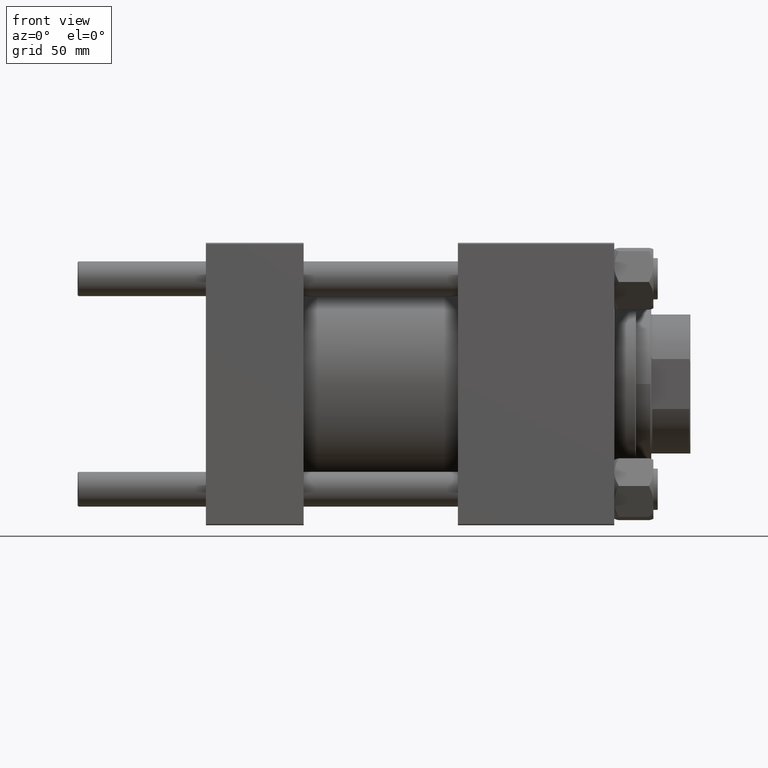
[diagram: clean part render]
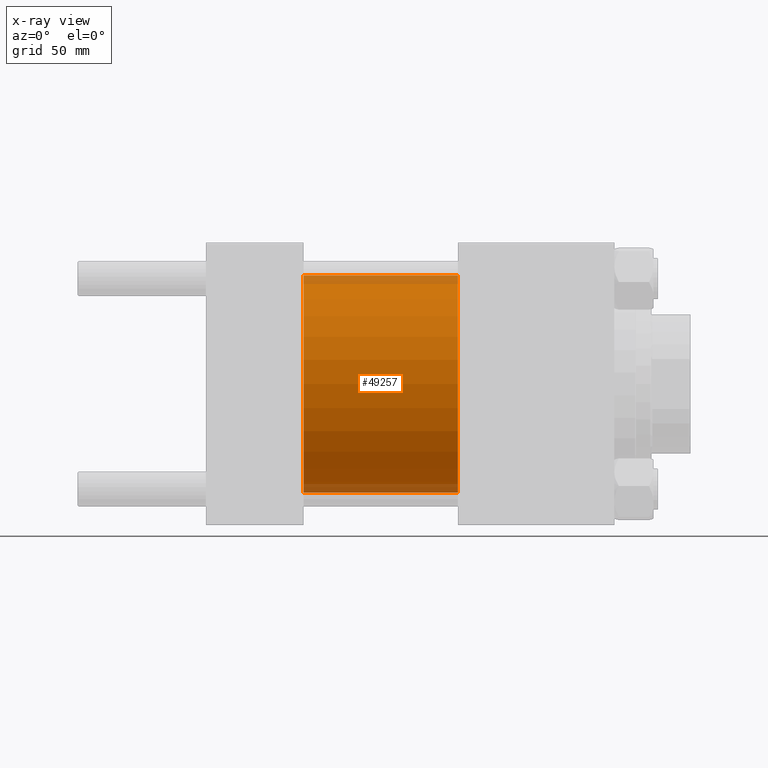
[diagram: x-ray — body ghosted, one internal face saturated and labeled with its STEP entity id]
A machine part, front view, then the same camera in x-ray: the body is ghosted and one INTERNAL B-rep face — a face not visible from any outside direction — is saturated and labeled: STEP entity #49257.
In plain terms, the highlighted cylindrical surface (partial cylindrical patch) has radius 50 mm, axis along (-1, -0, -0).
Its self-contained STEP definition (entity closure, byte-faithful):
#752 = ORIENTED_EDGE ( 'NONE', *, *, #42595, .T. ) ;
#817 = AXIS2_PLACEMENT_3D ( 'NONE', #24074, #12574, #23827 ) ;
#2895 = DIRECTION ( 'NONE',  ( 0.000000000000000000, 0.000000000000000000, -1.000000000000000000 ) ) ;
#5299 = ORIENTED_EDGE ( 'NONE', *, *, #22288, .T. ) ;
#7909 = EDGE_CURVE ( 'NONE', #24106, #17275, #13282, .T. ) ;
#9228 = DIRECTION ( 'NONE',  ( -1.000000000000000000, -0.000000000000000000, -0.000000000000000000 ) ) ;
#9753 = ORIENTED_EDGE ( 'NONE', *, *, #7909, .F. ) ;
#10189 = DIRECTION ( 'NONE',  ( 0.000000000000000000, 0.000000000000000000, 1.000000000000000000 ) ) ;
#12574 = DIRECTION ( 'NONE',  ( 1.000000000000000000, 0.000000000000000000, 0.000000000000000000 ) ) ;
#13282 = LINE ( 'NONE', #37021, #45515 ) ;
#13538 = DIRECTION ( 'NONE',  ( -1.000000000000000000, -0.000000000000000000, -0.000000000000000000 ) ) ;
#14942 = EDGE_CURVE ( 'NONE', #17275, #18814, #29344, .T. ) ;
#17275 = VERTEX_POINT ( 'NONE', #41350 ) ;
#18368 = DIRECTION ( 'NONE',  ( -1.000000000000000000, -0.000000000000000000, -0.000000000000000000 ) ) ;
#18622 = CYLINDRICAL_SURFACE ( 'NONE', #26657, 50.00000000000000000 ) ;
#18814 = VERTEX_POINT ( 'NONE', #24115 ) ;
#22288 = EDGE_CURVE ( 'NONE', #33458, #18814, #36543, .T. ) ;
#23827 = DIRECTION ( 'NONE',  ( 0.000000000000000000, 0.000000000000000000, -1.000000000000000000 ) ) ;
#24074 = CARTESIAN_POINT ( 'NONE',  ( 45.00000000000000000, 0.000000000000000000, 0.000000000000000000 ) ) ;
#24106 = VERTEX_POINT ( 'NONE', #24513 ) ;
#24115 = CARTESIAN_POINT ( 'NONE',  ( 45.00000000000000000, 6.123233995736766085E-15, -50.00000000000000000 ) ) ;
#24513 = CARTESIAN_POINT ( 'NONE',  ( 115.9999999999999858, 0.000000000000000000, 50.00000000000000000 ) ) ;
#26657 = AXIS2_PLACEMENT_3D ( 'NONE', #41067, #18368, #10189 ) ;
#27975 = ORIENTED_EDGE ( 'NONE', *, *, #14942, .F. ) ;
#29331 = FACE_OUTER_BOUND ( 'NONE', #33313, .T. ) ;
#29344 = CIRCLE ( 'NONE', #817, 50.00000000000000000 ) ;
#32460 = CARTESIAN_POINT ( 'NONE',  ( 115.9999999999999858, 6.123233995736766085E-15, -50.00000000000000000 ) ) ;
#32631 = CARTESIAN_POINT ( 'NONE',  ( 115.9999999999999858, 6.123233995736766085E-15, -50.00000000000000000 ) ) ;
#33313 = EDGE_LOOP ( 'NONE', ( #752, #5299, #27975, #9753 ) ) ;
#33458 = VERTEX_POINT ( 'NONE', #32631 ) ;
#36543 = LINE ( 'NONE', #32460, #49904 ) ;
#37021 = CARTESIAN_POINT ( 'NONE',  ( 115.9999999999999858, 0.000000000000000000, 50.00000000000000000 ) ) ;
#38773 = CIRCLE ( 'NONE', #42776, 50.00000000000000000 ) ;
#41067 = CARTESIAN_POINT ( 'NONE',  ( 115.9999999999999858, 0.000000000000000000, 0.000000000000000000 ) ) ;
#41350 = CARTESIAN_POINT ( 'NONE',  ( 45.00000000000000000, 0.000000000000000000, 50.00000000000000000 ) ) ;
#42595 = EDGE_CURVE ( 'NONE', #24106, #33458, #38773, .T. ) ;
#42776 = AXIS2_PLACEMENT_3D ( 'NONE', #49590, #46456, #2895 ) ;
#45515 = VECTOR ( 'NONE', #13538, 1000.000000000000000 ) ;
#46456 = DIRECTION ( 'NONE',  ( 1.000000000000000000, 0.000000000000000000, 0.000000000000000000 ) ) ;
#49257 = ADVANCED_FACE ( 'NONE', ( #29331 ), #18622, .F. ) ;
#49590 = CARTESIAN_POINT ( 'NONE',  ( 115.9999999999999858, 0.000000000000000000, 0.000000000000000000 ) ) ;
#49904 = VECTOR ( 'NONE', #9228, 1000.000000000000000 ) ;